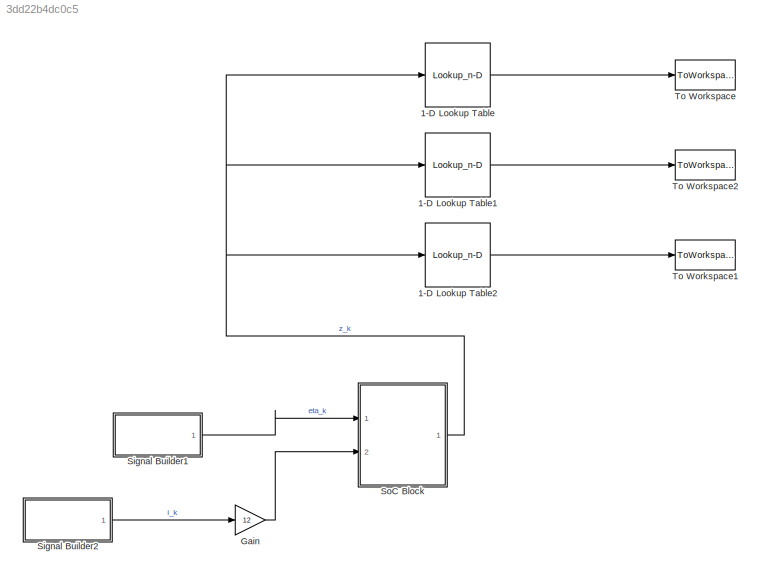
MODEL slx_3dd22b4dc0c5
KIND model
CONFIG AbsTol = auto
CONFIG EnableMultiTasking = off
CONFIG FixedStep = auto
CONFIG MaxStep = auto
CONFIG MinStep = auto
CONFIG RelTol = 1e-3
CONFIG SampleTimeConstraint = Unconstrained
CONFIG Solver = VariableStepAuto
CONFIG SolverName = VariableStepAuto
CONFIG StartTime = 0.0
CONFIG StopTime = 2335
BLOCK [Lookup_n-D] 1-D Lookup Table
  BreakpointsForDimension1 = soc_1.soc_1
  InternalRulePriority = Speed
  NumberOfTableDimensions = 1
  Ports = [1, 1]
  RndMeth = Simplest
  Table = r1.r1
BLOCK [Lookup_n-D] 1-D Lookup Table1
  BreakpointsForDimension1 = soc_1.soc_1
  InternalRulePriority = Speed
  NumberOfTableDimensions = 1
  Ports = [1, 1]
  RndMeth = Simplest
  Table = c1.c1
BLOCK [Lookup_n-D] 1-D Lookup Table2
  BreakpointsForDimension1 = soc_1.soc_1
  InternalRulePriority = Speed
  NumberOfTableDimensions = 1
  Ports = [1, 1]
  RndMeth = Simplest
  Table = r0.r0
BLOCK [Gain] Gain
  Gain = 12
  OutDataTypeStr = Inherit: Inherit via internal rule
  ParamDataTypeStr = Inherit: Inherit via internal rule
  SaturateOnIntegerOverflow = off
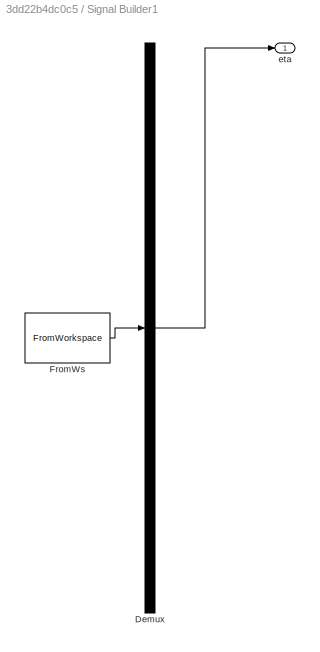
BLOCK [SubSystem] Signal Builder1
  ClipboardFcn = sigbuilder_block('clipboard');
  CloseFcn = sigbuilder_block('close');
  ContinueFcn = sigbuilder_block('continue');
  CopyFcn = sigbuilder_block('copy');
  DeleteFcn = sigbuilder_block('delete');
  LoadFcn = sigbuilder_block('load');
  MaskHideContents = on
  ModelCloseFcn = sigbuilder_block('modelClose');
  NameChangeFcn = sigbuilder_block('namechange');
  OpenFcn = sigbuilder_block('open',[402.6 159.6 550.8 400.2 ]);
  PauseFcn = sigbuilder_block('pause');
  Ports = [0, 1]
  PreSaveFcn = sigbuilder_block('preSave');
  RequestExecContextInheritance = off
  StartFcn = sigbuilder_block('start');
  StopFcn = sigbuilder_block('stop');
  Tag = STV Subsys
BLOCK [Demux] Signal Builder1/Demux
  Outputs = 1
  Ports = [1, 1]
  Tag = STV Demux
BLOCK [FromWorkspace] Signal Builder1/FromWs
  SampleTime = 0
  Tag = STV FromWs
  VariableName = tuvar
  ZeroCross = on
BLOCK [Outport] Signal Builder1/eta
  IconDisplay = Port number
  Tag = STV Outport
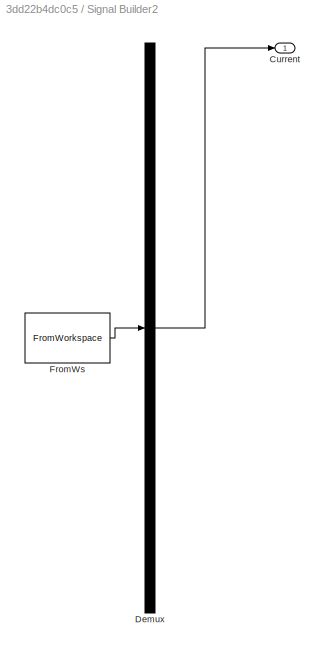
BLOCK [SubSystem] Signal Builder2
  ClipboardFcn = sigbuilder_block('clipboard');
  CloseFcn = sigbuilder_block('close');
  ContinueFcn = sigbuilder_block('continue');
  CopyFcn = sigbuilder_block('copy');
  DeleteFcn = sigbuilder_block('delete');
  LoadFcn = sigbuilder_block('load');
  MaskHideContents = on
  ModelCloseFcn = sigbuilder_block('modelClose');
  NameChangeFcn = sigbuilder_block('namechange');
  OpenFcn = sigbuilder_block('open',[339.6 151.8 550.8 400.2 ]);
  PauseFcn = sigbuilder_block('pause');
  Ports = [0, 1]
  PreSaveFcn = sigbuilder_block('preSave');
  RequestExecContextInheritance = off
  StartFcn = sigbuilder_block('start');
  StopFcn = sigbuilder_block('stop');
  Tag = STV Subsys
BLOCK [Outport] Signal Builder2/Current
  IconDisplay = Port number
  Tag = STV Outport
BLOCK [Demux] Signal Builder2/Demux
  Outputs = 1
  Ports = [1, 1]
  Tag = STV Demux
BLOCK [FromWorkspace] Signal Builder2/FromWs
  SampleTime = 0
  Tag = STV FromWs
  VariableName = tuvar
  ZeroCross = on
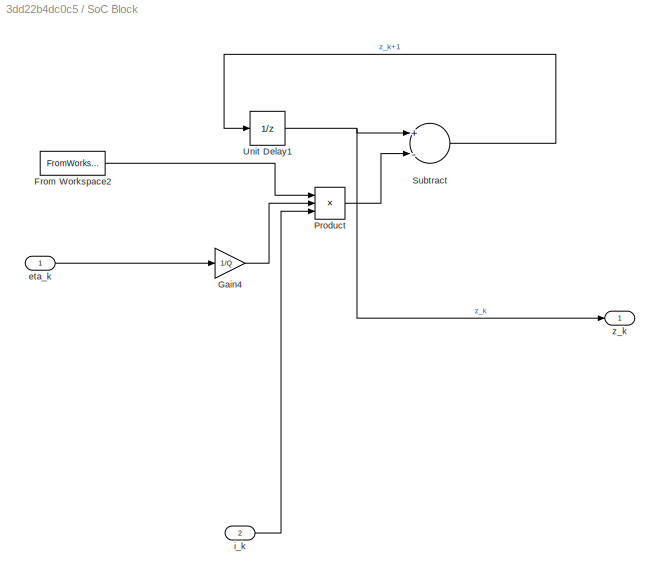
BLOCK [SubSystem] SoC Block 
  Ports = [2, 1]
  RequestExecContextInheritance = off
BLOCK [FromWorkspace] SoC Block /From Workspace2
  SampleTime = 0
  VariableName = deltat
  ZeroCross = on
BLOCK [Gain] SoC Block /Gain4
  Gain = 1/Q
  OutDataTypeStr = Inherit: Inherit via internal rule
  ParamDataTypeStr = Inherit: Inherit via internal rule
  SaturateOnIntegerOverflow = off
BLOCK [Product] SoC Block /Product
  InputSameDT = off
  Inputs = 3
  OutDataTypeStr = Inherit: Inherit via internal rule
  Ports = [3, 1]
  RndMeth = Floor
  SaturateOnIntegerOverflow = off
BLOCK [Sum] SoC Block /Subtract
  InputSameDT = off
  Inputs = +-
  OutDataTypeStr = Inherit: Inherit via internal rule
  Ports = [2, 1]
  SaturateOnIntegerOverflow = off
BLOCK [UnitDelay] SoC Block /Unit Delay1
  HasFrameUpgradeWarning = on
  InitialCondition = 100
BLOCK [Inport] SoC Block /eta_k
  IconDisplay = Port number
BLOCK [Inport] SoC Block /i_k
  IconDisplay = Port number
  Port = 2
BLOCK [Outport] SoC Block /z_k
  IconDisplay = Port number
BLOCK [ToWorkspace] To Workspace
  FixptAsFi = on
  MaxDataPoints = inf
  Ports = [1]
  SampleTime = -1
  Save2DSignal = 2-D array (concatenate along first dimension)
  SaveFormat = Timeseries
  VariableName = R1
BLOCK [ToWorkspace] To Workspace1
  FixptAsFi = on
  MaxDataPoints = inf
  Ports = [1]
  SampleTime = -1
  Save2DSignal = 2-D array (concatenate along first dimension)
  SaveFormat = Timeseries
  VariableName = R0
BLOCK [ToWorkspace] To Workspace2
  FixptAsFi = on
  MaxDataPoints = inf
  Ports = [1]
  SampleTime = -1
  Save2DSignal = 2-D array (concatenate along first dimension)
  SaveFormat = Timeseries
  VariableName = C1
LINE 1-D Lookup Table1:1 -> To Workspace2:1
LINE 1-D Lookup Table2:1 -> To Workspace1:1
LINE 1-D Lookup Table:1 -> To Workspace:1
LINE Gain:1 -> SoC Block :2
LINE Signal Builder1:1 -> SoC Block :1
LINE Signal Builder2:1 -> Gain:1
LINE SoC Block /From Workspace2:1 -> SoC Block /Product:1
LINE SoC Block /Gain4:1 -> SoC Block /Product:2
LINE SoC Block /Product:1 -> SoC Block /Subtract:2
LINE SoC Block /Subtract:1 -> SoC Block /Unit Delay1:1
NET SoC Block /Unit Delay1:1 -> SoC Block /Subtract:1, SoC Block /z_k:1
LINE SoC Block /eta_k:1 -> SoC Block /Gain4:1
LINE SoC Block /i_k:1 -> SoC Block /Product:3
NET SoC Block :1 -> 1-D Lookup Table1:1, 1-D Lookup Table2:1, 1-D Lookup Table:1
note: NET lines group one-source signal fan-out (src -> all destinations, sorted); 1:1 wires keep LINE
